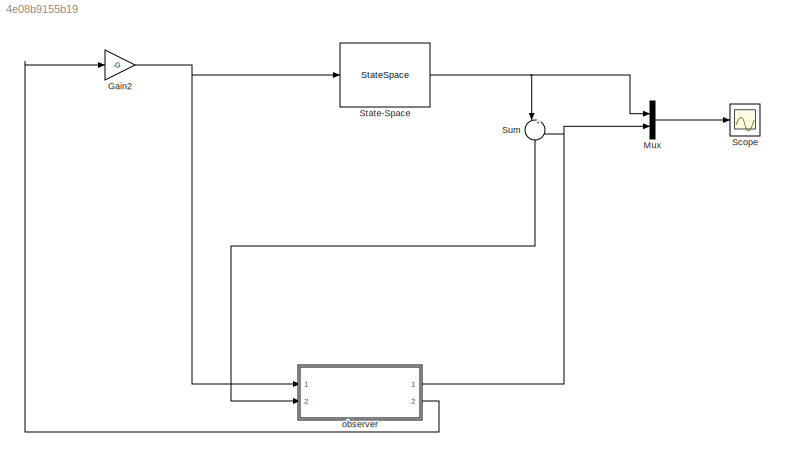
MODEL slx_4e08b9155b19
KIND model
CONFIG AbsTol = auto
CONFIG EnableMultiTasking = off
CONFIG FixedStep = auto
CONFIG MaxStep = auto
CONFIG MinStep = auto
CONFIG RelTol = 1e-3
CONFIG SampleTimeConstraint = Unconstrained
CONFIG Solver = VariableStepAuto
CONFIG SolverName = VariableStepAuto
CONFIG StartTime = 0.0
CONFIG StopTime = 10.0
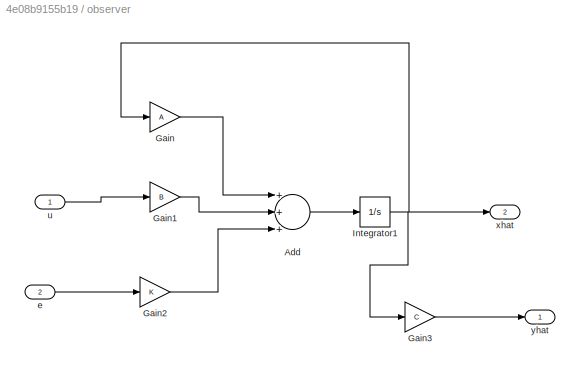
BLOCK [SubSystem]  observer
  Ports = [2, 2]
  RequestExecContextInheritance = off
BLOCK [Sum]  observer/Add
  InputSameDT = off
  Inputs = +++
  OutDataTypeStr = Inherit: Inherit via internal rule
  Ports = [3, 1]
  SaturateOnIntegerOverflow = off
BLOCK [Gain]  observer/Gain
  Gain = A
  Multiplication = Matrix(K*u)
  OutDataTypeStr = Inherit: Inherit via internal rule
  ParamDataTypeStr = Inherit: Inherit via internal rule
  SaturateOnIntegerOverflow = off
BLOCK [Gain]  observer/Gain1
  Gain = B
  Multiplication = Matrix(K*u)
  OutDataTypeStr = Inherit: Inherit via internal rule
  ParamDataTypeStr = Inherit: Inherit via internal rule
  SaturateOnIntegerOverflow = off
BLOCK [Gain]  observer/Gain2
  Gain = K
  Multiplication = Matrix(K*u)
  OutDataTypeStr = Inherit: Inherit via internal rule
  ParamDataTypeStr = Inherit: Inherit via internal rule
  SaturateOnIntegerOverflow = off
BLOCK [Gain]  observer/Gain3
  Gain = C
  Multiplication = Matrix(K*u)
  OutDataTypeStr = Inherit: Inherit via internal rule
  ParamDataTypeStr = Inherit: Inherit via internal rule
  SaturateOnIntegerOverflow = off
BLOCK [Integrator]  observer/Integrator1
  InitialCondition = [2 2 0 -1]
  Ports = [1, 1]
BLOCK [Inport]  observer/e
  IconDisplay = Port number
  Port = 2
BLOCK [Inport]  observer/u
  IconDisplay = Port number
BLOCK [Outport]  observer/xhat
  IconDisplay = Port number
  Port = 2
BLOCK [Outport]  observer/yhat
  IconDisplay = Port number
BLOCK [Gain] Gain2
  Gain = -G
  Multiplication = Matrix(K*u)
  OutDataTypeStr = Inherit: Inherit via internal rule
  ParamDataTypeStr = Inherit: Inherit via internal rule
  SaturateOnIntegerOverflow = off
BLOCK [Mux] Mux
  DisplayOption = bar
  Inputs = 2
  Ports = [2, 1]
BLOCK [Scope] Scope
  Floating = off
  NumInputPorts = 1
  Ports = [1]
  ScopeSpecificationString = Simulink.scopes.TimeScopeBlockCfg('CurrentConfiguration', extmgr.ConfigurationSet(extmgr.Configuration('Core','General UI',true),extmgr.Configuration('Core','Source UI',true),extmgr.Configuration('Sources','WiredSimulink',true),extmgr.Configuration('Visuals','Time Domain',true,'SerializedDisplays',{struct('MinYLimReal','-17.18388','MaxYLimReal','14.97362','YLabelReal','','MinYLimMag','0.00000','Ma...<+1458ch>
BLOCK [StateSpace] State-Space
  A = [-0.01357 -32.2 -46.3 0; 0.00012 0 1.214 0; -0.0001212 0 -1.214 1; 0.00057 0 -0.1 -0.6696]
  B = [-0.433;0.1394; -0.1394; -0.1577]
  C = [0 0 0 1; 1 0 0 0]
  D = [0; 0]
  InitialCondition = [2 2 0  -1]
  Ports = [1, 1]
BLOCK [Sum] Sum
  IconShape = round
  InputSameDT = off
  Inputs = |+-
  OutDataTypeStr = Inherit: Inherit via internal rule
  Ports = [2, 1]
  SaturateOnIntegerOverflow = off
LINE  observer/Add:1 ->  observer/Integrator1:1
LINE  observer/Gain1:1 ->  observer/Add:2
LINE  observer/Gain2:1 ->  observer/Add:3
LINE  observer/Gain3:1 ->  observer/yhat:1
LINE  observer/Gain:1 ->  observer/Add:1
NET  observer/Integrator1:1 ->  observer/Gain3:1,  observer/Gain:1,  observer/xhat:1
LINE  observer/e:1 ->  observer/Gain2:1
LINE  observer/u:1 ->  observer/Gain1:1
NET  observer:1 -> Mux:2, Sum:2
LINE  observer:2 -> Gain2:1
NET Gain2:1 ->  observer:1, State-Space:1
LINE Mux:1 -> Scope:1
NET State-Space:1 -> Mux:1, Sum:1
LINE Sum:1 ->  observer:2
note: NET lines group one-source signal fan-out (src -> all destinations, sorted); 1:1 wires keep LINE
